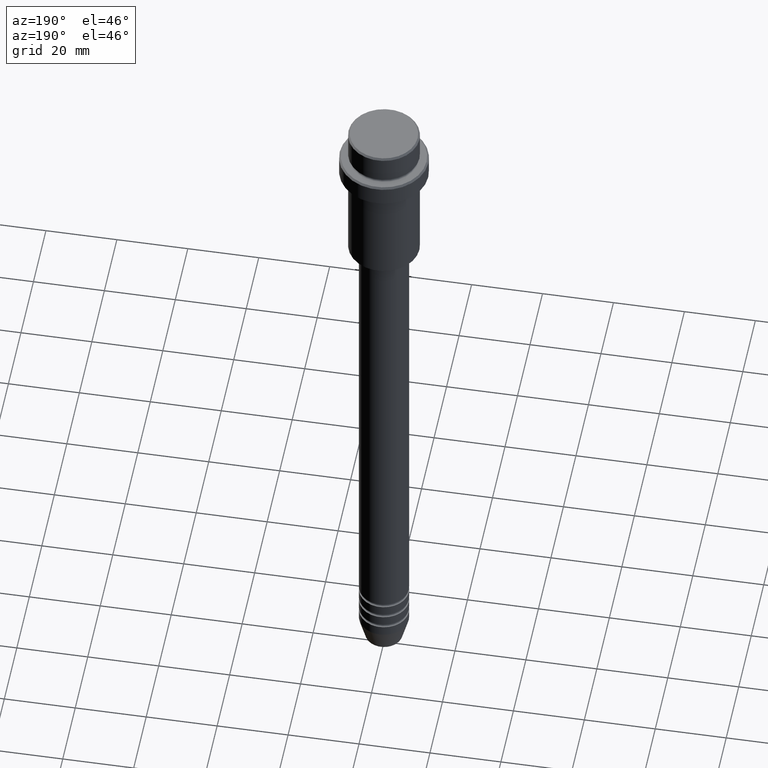
[diagram: clean part render]
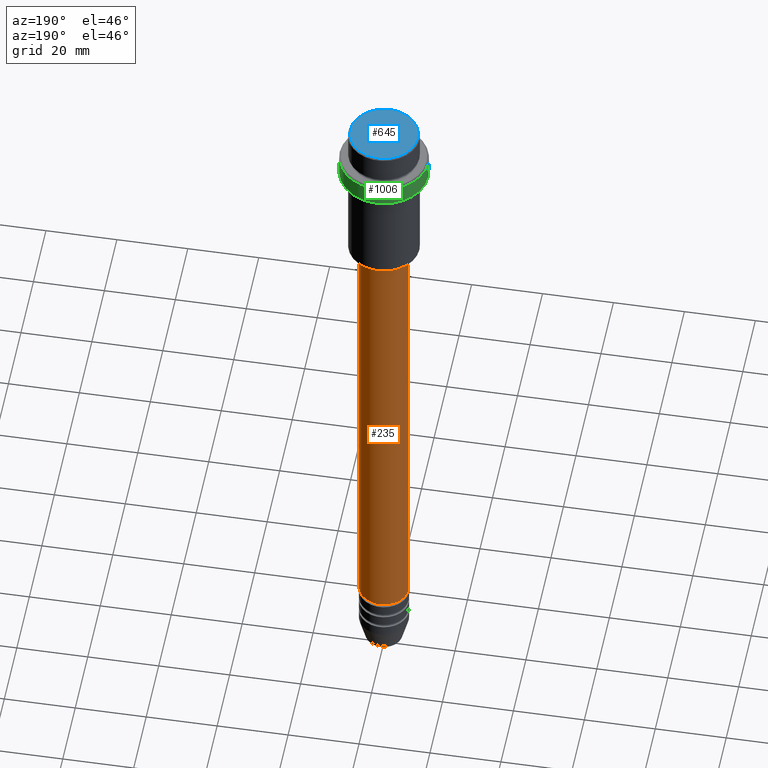
[diagram: same view with three faces highlighted in distinct colors, each labeled with its STEP entity id]
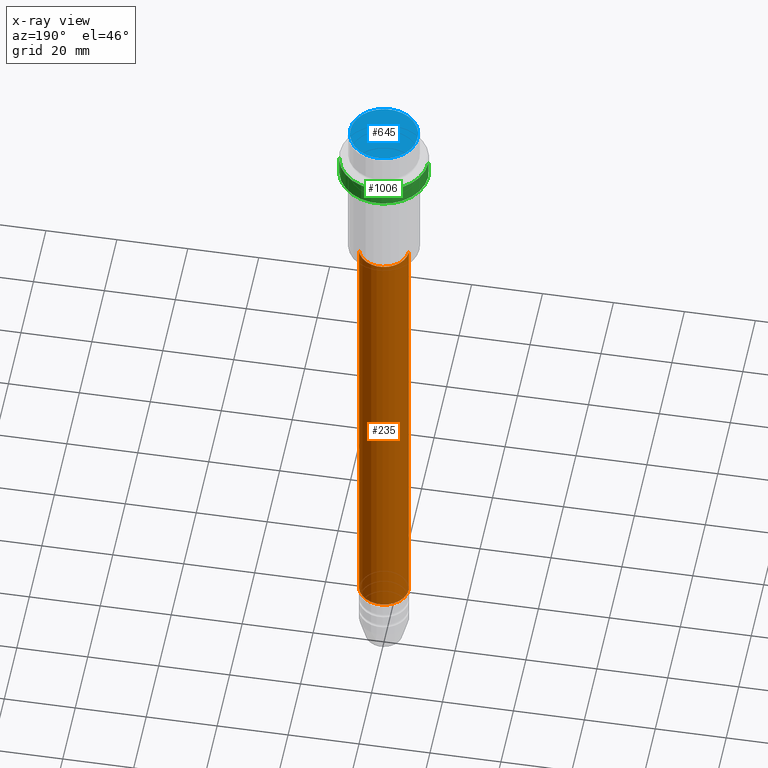
[diagram: x-ray of the same camera — body ghosted, the three highlighted faces saturated]
A machine part, auxiliary view with three faces highlighted in distinct colors.
The next image is the same camera in x-ray (body ghosted, the three faces saturated) — at least one of them is partly hidden behind the body in this view.
Their STEP definitions:

[orange] entity #235 — the highlighted cylindrical surface (edge-blend (fillet) strip) has radius 7 mm, axis along (-0, -0, 1).
#36 = VERTEX_POINT ( 'NONE', #781 ) ;
#67 = CARTESIAN_POINT ( 'NONE',  ( -7.000000000000000000, 8.572527594031473190E-16, -180.9999999999998863 ) ) ;
#168 = EDGE_LOOP ( 'NONE', ( #1091, #1370, #572, #1171 ) ) ;
#169 = CARTESIAN_POINT ( 'NONE',  ( 7.000000000000000000, 0.000000000000000000, -46.00000000000001421 ) ) ;
#171 = CYLINDRICAL_SURFACE ( 'NONE', #360, 7.000000000000000000 ) ;
#235 = ADVANCED_FACE ( 'NONE', ( #738 ), #171, .T. ) ;
#319 = CIRCLE ( 'NONE', #1196, 7.000000000000000000 ) ;
#360 = AXIS2_PLACEMENT_3D ( 'NONE', #1369, #717, #1032 ) ;
#411 = LINE ( 'NONE', #873, #929 ) ;
#452 = EDGE_CURVE ( 'NONE', #507, #851, #411, .T. ) ;
#472 = DIRECTION ( 'NONE',  ( -0.000000000000000000, -0.000000000000000000, 1.000000000000000000 ) ) ;
#480 = CARTESIAN_POINT ( 'NONE',  ( -7.000000000000000000, 8.572527594031473190E-16, 0.000000000000000000 ) ) ;
#490 = DIRECTION ( 'NONE',  ( -0.000000000000000000, -0.000000000000000000, 1.000000000000000000 ) ) ;
#502 = CARTESIAN_POINT ( 'NONE',  ( 0.000000000000000000, 0.000000000000000000, -180.9999999999998863 ) ) ;
#507 = VERTEX_POINT ( 'NONE', #541 ) ;
#541 = CARTESIAN_POINT ( 'NONE',  ( 7.000000000000000000, 0.000000000000000000, -180.9999999999998863 ) ) ;
#547 = DIRECTION ( 'NONE',  ( -0.000000000000000000, -0.000000000000000000, 1.000000000000000000 ) ) ;
#572 = ORIENTED_EDGE ( 'NONE', *, *, #968, .F. ) ;
#717 = DIRECTION ( 'NONE',  ( -0.000000000000000000, -0.000000000000000000, 1.000000000000000000 ) ) ;
#729 = DIRECTION ( 'NONE',  ( 1.000000000000000000, 0.000000000000000000, 0.000000000000000000 ) ) ;
#738 = FACE_OUTER_BOUND ( 'NONE', #168, .T. ) ;
#781 = CARTESIAN_POINT ( 'NONE',  ( -7.000000000000000000, 8.572527594031473190E-16, -46.00000000000001421 ) ) ;
#851 = VERTEX_POINT ( 'NONE', #169 ) ;
#873 = CARTESIAN_POINT ( 'NONE',  ( 7.000000000000000000, 0.000000000000000000, 0.000000000000000000 ) ) ;
#929 = VECTOR ( 'NONE', #547, 1000.000000000000000 ) ;
#935 = EDGE_CURVE ( 'NONE', #507, #1115, #319, .T. ) ;
#968 = EDGE_CURVE ( 'NONE', #851, #36, #1122, .T. ) ;
#996 = AXIS2_PLACEMENT_3D ( 'NONE', #1267, #490, #729 ) ;
#1032 = DIRECTION ( 'NONE',  ( 1.000000000000000000, 0.000000000000000000, 0.000000000000000000 ) ) ;
#1091 = ORIENTED_EDGE ( 'NONE', *, *, #935, .T. ) ;
#1115 = VERTEX_POINT ( 'NONE', #67 ) ;
#1122 = CIRCLE ( 'NONE', #996, 7.000000000000000000 ) ;
#1138 = LINE ( 'NONE', #480, #1287 ) ;
#1171 = ORIENTED_EDGE ( 'NONE', *, *, #452, .F. ) ;
#1196 = AXIS2_PLACEMENT_3D ( 'NONE', #502, #1250, #1365 ) ;
#1250 = DIRECTION ( 'NONE',  ( -0.000000000000000000, -0.000000000000000000, 1.000000000000000000 ) ) ;
#1267 = CARTESIAN_POINT ( 'NONE',  ( 0.000000000000000000, 0.000000000000000000, -46.00000000000001421 ) ) ;
#1287 = VECTOR ( 'NONE', #472, 1000.000000000000000 ) ;
#1365 = DIRECTION ( 'NONE',  ( 1.000000000000000000, 0.000000000000000000, 0.000000000000000000 ) ) ;
#1369 = CARTESIAN_POINT ( 'NONE',  ( 0.000000000000000000, 0.000000000000000000, 0.000000000000000000 ) ) ;
#1370 = ORIENTED_EDGE ( 'NONE', *, *, #1386, .T. ) ;
#1386 = EDGE_CURVE ( 'NONE', #1115, #36, #1138, .T. ) ;

[blue] entity #645 — the highlighted planar face has unit normal (0, -0, 1).
#23 = EDGE_LOOP ( 'NONE', ( #427, #58 ) ) ;
#44 = AXIS2_PLACEMENT_3D ( 'NONE', #1143, #1274, #1363 ) ;
#58 = ORIENTED_EDGE ( 'NONE', *, *, #116, .T. ) ;
#60 = VERTEX_POINT ( 'NONE', #306 ) ;
#116 = EDGE_CURVE ( 'NONE', #977, #60, #1099, .T. ) ;
#174 = DIRECTION ( 'NONE',  ( 1.000000000000000000, 0.000000000000000000, 0.000000000000000000 ) ) ;
#255 = CIRCLE ( 'NONE', #797, 9.500000000000008882 ) ;
#292 = CARTESIAN_POINT ( 'NONE',  ( 0.000000000000000000, 0.000000000000000000, 0.000000000000000000 ) ) ;
#306 = CARTESIAN_POINT ( 'NONE',  ( -9.500000000000008882, 0.000000000000000000, 0.000000000000000000 ) ) ;
#387 = FACE_OUTER_BOUND ( 'NONE', #23, .T. ) ;
#420 = DIRECTION ( 'NONE',  ( 1.000000000000000000, 0.000000000000000000, 0.000000000000000000 ) ) ;
#426 = CARTESIAN_POINT ( 'NONE',  ( 0.000000000000000000, 0.000000000000000000, 0.000000000000000000 ) ) ;
#427 = ORIENTED_EDGE ( 'NONE', *, *, #1113, .T. ) ;
#540 = DIRECTION ( 'NONE',  ( 0.000000000000000000, -0.000000000000000000, 1.000000000000000000 ) ) ;
#645 = ADVANCED_FACE ( 'NONE', ( #387 ), #1072, .T. ) ;
#706 = CARTESIAN_POINT ( 'NONE',  ( 9.500000000000008882, 1.194030629168669864E-15, 0.000000000000000000 ) ) ;
#797 = AXIS2_PLACEMENT_3D ( 'NONE', #426, #1296, #174 ) ;
#977 = VERTEX_POINT ( 'NONE', #706 ) ;
#1072 = PLANE ( 'NONE',  #1330 ) ;
#1099 = CIRCLE ( 'NONE', #44, 9.500000000000008882 ) ;
#1113 = EDGE_CURVE ( 'NONE', #60, #977, #255, .T. ) ;
#1143 = CARTESIAN_POINT ( 'NONE',  ( 0.000000000000000000, 0.000000000000000000, 0.000000000000000000 ) ) ;
#1274 = DIRECTION ( 'NONE',  ( -0.000000000000000000, -0.000000000000000000, 1.000000000000000000 ) ) ;
#1296 = DIRECTION ( 'NONE',  ( -0.000000000000000000, -0.000000000000000000, 1.000000000000000000 ) ) ;
#1330 = AXIS2_PLACEMENT_3D ( 'NONE', #292, #540, #420 ) ;
#1363 = DIRECTION ( 'NONE',  ( 1.000000000000000000, 0.000000000000000000, 0.000000000000000000 ) ) ;

[green] entity #1006 — the highlighted cylindrical surface (partial cylindrical patch) has radius 12.5 mm, axis along (-0, -0, 1).
#21 = DIRECTION ( 'NONE',  ( -0.000000000000000000, -0.000000000000000000, 1.000000000000000000 ) ) ;
#43 = VERTEX_POINT ( 'NONE', #1288 ) ;
#61 = VERTEX_POINT ( 'NONE', #638 ) ;
#291 = DIRECTION ( 'NONE',  ( -0.000000000000000000, -0.000000000000000000, 1.000000000000000000 ) ) ;
#323 = DIRECTION ( 'NONE',  ( 1.000000000000000000, 0.000000000000000000, 0.000000000000000000 ) ) ;
#340 = ORIENTED_EDGE ( 'NONE', *, *, #407, .T. ) ;
#348 = VERTEX_POINT ( 'NONE', #969 ) ;
#365 = LINE ( 'NONE', #708, #384 ) ;
#384 = VECTOR ( 'NONE', #1029, 1000.000000000000000 ) ;
#407 = EDGE_CURVE ( 'NONE', #61, #43, #365, .T. ) ;
#419 = CARTESIAN_POINT ( 'NONE',  ( 12.50000000000000000, 0.000000000000000000, 0.000000000000000000 ) ) ;
#473 = ORIENTED_EDGE ( 'NONE', *, *, #674, .T. ) ;
#544 = CARTESIAN_POINT ( 'NONE',  ( 12.50000000000000000, 0.000000000000000000, -15.00000000000000000 ) ) ;
#581 = VECTOR ( 'NONE', #644, 1000.000000000000000 ) ;
#603 = AXIS2_PLACEMENT_3D ( 'NONE', #1000, #21, #323 ) ;
#629 = ORIENTED_EDGE ( 'NONE', *, *, #1087, .F. ) ;
#631 = ORIENTED_EDGE ( 'NONE', *, *, #903, .T. ) ;
#638 = CARTESIAN_POINT ( 'NONE',  ( -12.50000000000000000, 1.530808498934191521E-15, -15.00000000000000000 ) ) ;
#644 = DIRECTION ( 'NONE',  ( -0.000000000000000000, -0.000000000000000000, 1.000000000000000000 ) ) ;
#674 = EDGE_CURVE ( 'NONE', #43, #348, #1265, .T. ) ;
#708 = CARTESIAN_POINT ( 'NONE',  ( -12.50000000000000000, 1.530808498934191521E-15, 0.000000000000000000 ) ) ;
#752 = DIRECTION ( 'NONE',  ( 0.000000000000000000, 0.000000000000000000, -1.000000000000000000 ) ) ;
#838 = CIRCLE ( 'NONE', #603, 12.50000000000000000 ) ;
#840 = CYLINDRICAL_SURFACE ( 'NONE', #1241, 12.50000000000000000 ) ;
#903 = EDGE_CURVE ( 'NONE', #1202, #61, #838, .T. ) ;
#966 = CARTESIAN_POINT ( 'NONE',  ( 0.000000000000000000, 0.000000000000000000, 0.000000000000000000 ) ) ;
#969 = CARTESIAN_POINT ( 'NONE',  ( 12.50000000000000000, 0.000000000000000000, -9.500000000000005329 ) ) ;
#1000 = CARTESIAN_POINT ( 'NONE',  ( 0.000000000000000000, 0.000000000000000000, -15.00000000000000000 ) ) ;
#1006 = ADVANCED_FACE ( 'NONE', ( #1152 ), #840, .T. ) ;
#1029 = DIRECTION ( 'NONE',  ( -0.000000000000000000, -0.000000000000000000, 1.000000000000000000 ) ) ;
#1066 = EDGE_LOOP ( 'NONE', ( #631, #340, #473, #629 ) ) ;
#1067 = DIRECTION ( 'NONE',  ( 1.000000000000000000, 0.000000000000000000, 0.000000000000000000 ) ) ;
#1087 = EDGE_CURVE ( 'NONE', #1202, #348, #1182, .T. ) ;
#1152 = FACE_OUTER_BOUND ( 'NONE', #1066, .T. ) ;
#1182 = LINE ( 'NONE', #419, #581 ) ;
#1183 = DIRECTION ( 'NONE',  ( 1.000000000000000000, 0.000000000000000000, 0.000000000000000000 ) ) ;
#1187 = CARTESIAN_POINT ( 'NONE',  ( 0.000000000000000000, 0.000000000000000000, -9.500000000000005329 ) ) ;
#1202 = VERTEX_POINT ( 'NONE', #544 ) ;
#1241 = AXIS2_PLACEMENT_3D ( 'NONE', #966, #291, #1067 ) ;
#1265 = CIRCLE ( 'NONE', #1284, 12.50000000000000000 ) ;
#1284 = AXIS2_PLACEMENT_3D ( 'NONE', #1187, #752, #1183 ) ;
#1288 = CARTESIAN_POINT ( 'NONE',  ( -12.50000000000000000, 1.530808498934191521E-15, -9.500000000000005329 ) ) ;